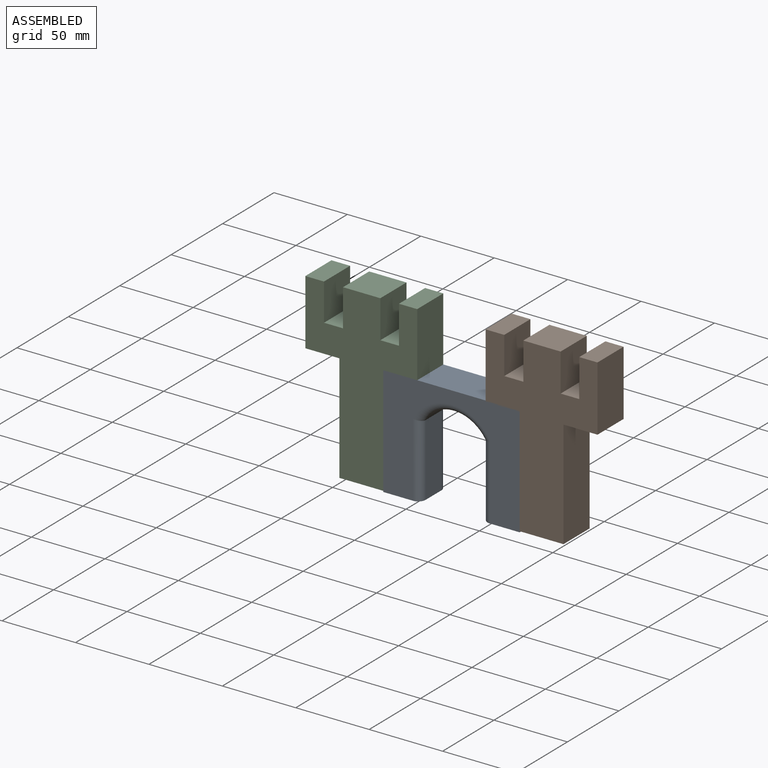
[diagram: assembled view]
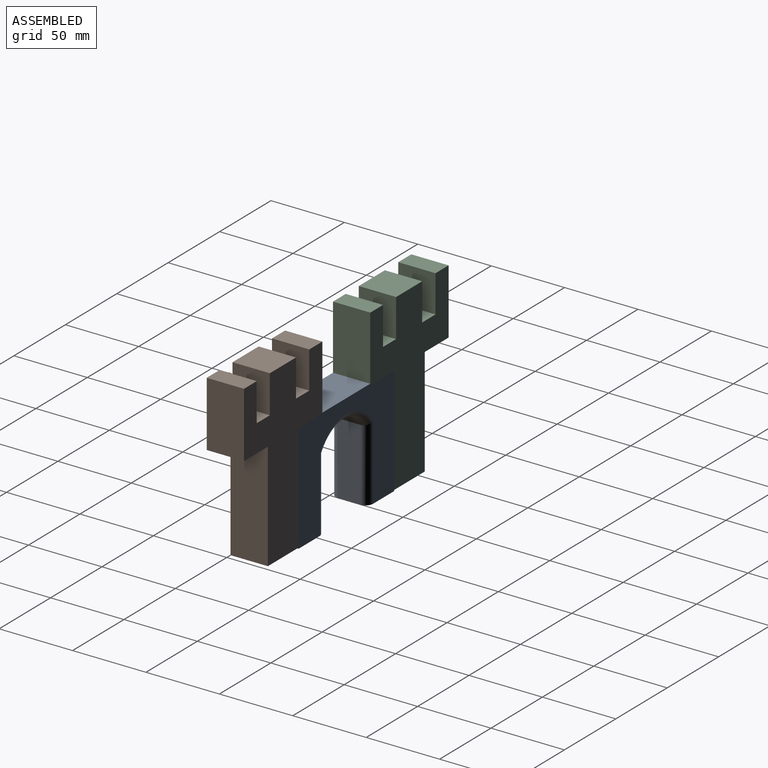
[diagram: assembled view, second angle]
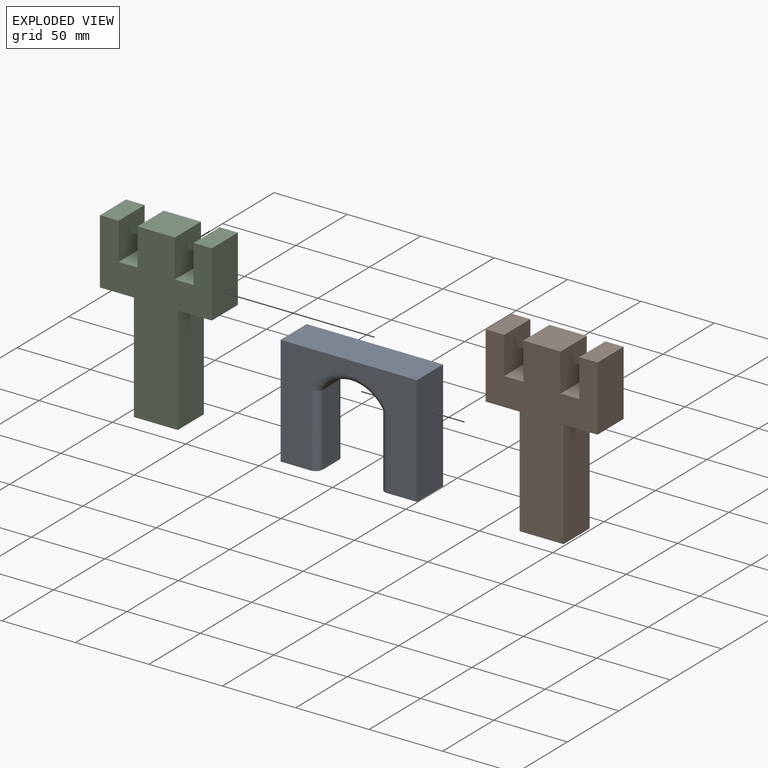
[diagram: exploded view]
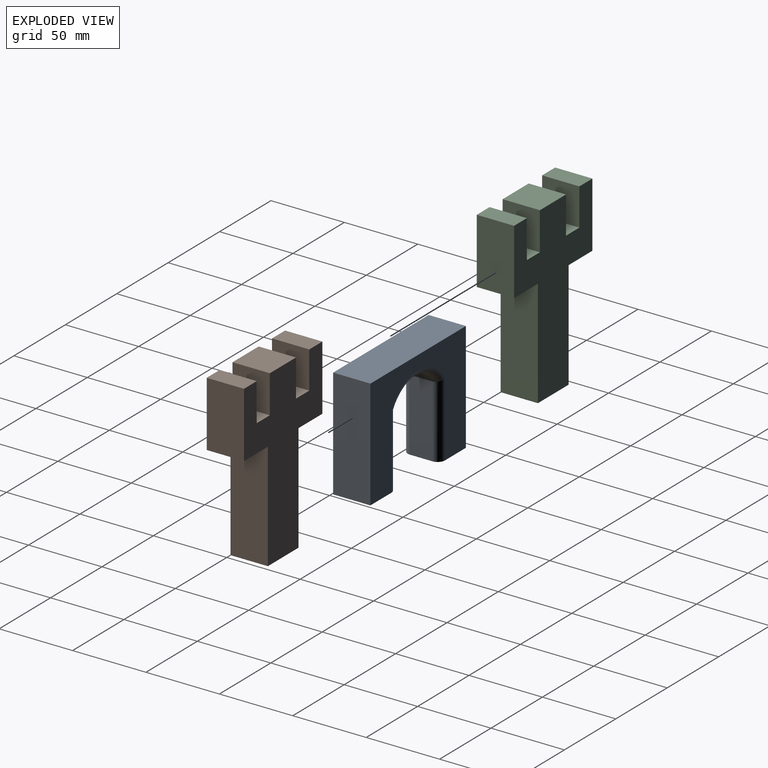
[diagram: exploded view, second angle]
ASSEMBLY  parts=3 mates=2
PART A: 16 faces, bbox 92.9x25.4x75 mm
  f0: plane 74.96x25.4mm, normal (1,0,0), area 1903.9mm2, adj f1,f7,f8,f9
  f1: plane 92.91x25.4mm, normal (0,0,1), area 2359.9mm2, adj f0,f2,f8,f9
  f2: plane 74.96x25.4mm, normal (-1,0,0), area 1903.9mm2, adj f1,f3,f8,f9
  f3: plane 25.4x25.4mm, normal (0,0,-1), area 634.1mm2, adj f2,f4,f8,f9,f10,f13
  f4: plane 49.14x15.24mm, normal (1,0,0), area 748.9mm2, adj f3,f5,f10,f13
  f5: cylinder r=24.83mm len=42.11mm, axis (0,1,0), area 765.9mm2, adj f4,f6,f11,f14
  f6: plane 49.14x15.24mm, normal (-1,0,0), area 748.9mm2, adj f5,f7,f12,f15
  f7: plane 25.4x25.4mm, normal (0,0,-1), area 634.1mm2, adj f0,f6,f8,f9,f12,f15
  f8: plane 92.91x74.96mm, normal (0,-1,0), area 3752.4mm2, adj f0,f1,f2,f3,f7,f13,f14,f15
  f9: plane 92.91x74.96mm, normal (0,1,0), area 3752.4mm2, adj f0,f1,f2,f3,f7,f10,f11,f12
  f10: cylinder r=5.08mm len=50.53mm, axis (0,0,1), area 396.2mm2, adj f3,f4,f9,f11
  f11: torus R=29.91mm, axis (0,-1,0), area 439.5mm2, adj f5,f9,f10,f12
  f12: cylinder r=5.08mm len=50.53mm, axis (0,0,-1), area 396.2mm2, adj f6,f7,f9,f11
  f13: cylinder r=5.08mm len=50.53mm, axis (0,0,-1), area 396.2mm2, adj f3,f4,f8,f14
  f14: torus R=29.91mm, axis (0,-1,0), area 439.5mm2, adj f5,f8,f13,f15
  f15: cylinder r=5.08mm len=50.53mm, axis (0,0,1), area 396.2mm2, adj f6,f7,f8,f14
PART B: 18 faces, bbox 76.2x25.4x118 mm
  f0: plane 25.4x23.16mm, normal (0,0,-1), area 588.3mm2, adj f1,f15,f16,f17
  f1: plane 44.45x25.4mm, normal (1,0,0), area 1129mm2, adj f0,f2,f16,f17
  f2: plane 25.4x12.41mm, normal (0,0,1), area 315.2mm2, adj f1,f3,f16,f17
  f3: plane 25.86x25.4mm, normal (-1,0,0), area 656.9mm2, adj f2,f4,f16,f17
  f4: plane 25.4x12.7mm, normal (0,0,1), area 322.6mm2, adj f3,f5,f16,f17
  f5: plane 25.86x25.4mm, normal (1,0,0), area 656.9mm2, adj f4,f6,f16,f17
  f6: plane 25.4x25.4mm, normal (0,0,1), area 645.2mm2, adj f5,f7,f16,f17
  f7: plane 25.4x25.35mm, normal (-1,0,0), area 643.8mm2, adj f6,f8,f16,f17
  f8: plane 25.4x12.99mm, normal (0,0,1), area 330mm2, adj f7,f9,f16,f17
  f9: plane 25.4x25.35mm, normal (1,0,0), area 643.8mm2, adj f8,f10,f16,f17
  f10: plane 25.4x12.7mm, normal (0,0,1), area 322.6mm2, adj f9,f11,f16,f17
  f11: plane 44.45x25.4mm, normal (-1,0,0), area 1129mm2, adj f10,f12,f16,f17
  f12: plane 25.4x23.16mm, normal (0,0,-1), area 588.3mm2, adj f11,f13,f16,f17
  f13: plane 73.59x25.4mm, normal (-1,0,0), area 1869.2mm2, adj f12,f14,f16,f17
  f14: plane 29.88x25.4mm, normal (0,0,-1), area 759mm2, adj f13,f15,f16,f17
  f15: plane 73.59x25.4mm, normal (1,0,0), area 1869.2mm2, adj f0,f14,f16,f17
  f16: plane 118.04x76.2mm, normal (0,-1,0), area 4928.3mm2, adj f0,f1,f2,f3,f4,f5,f6,f7
  f17: plane 118.04x76.2mm, normal (0,1,0), area 4928.3mm2, adj f0,f1,f2,f3,f4,f5,f6,f7
PART C: same geometry as B
PLACE A t=(77.34,30.58,-40.16)mm
PLACE B t=(138.73,30.58,-40.04)mm
PLACE C t=(15.94,30.58,-40.04)mm
MATE fastened C.f15 <-> A.f2  axis (1,0,0) through (30.88,17.88,-40.16)mm
MATE fastened B.f13 <-> A.f0  axis (-1,0,0) through (123.79,17.88,-40.16)mm
